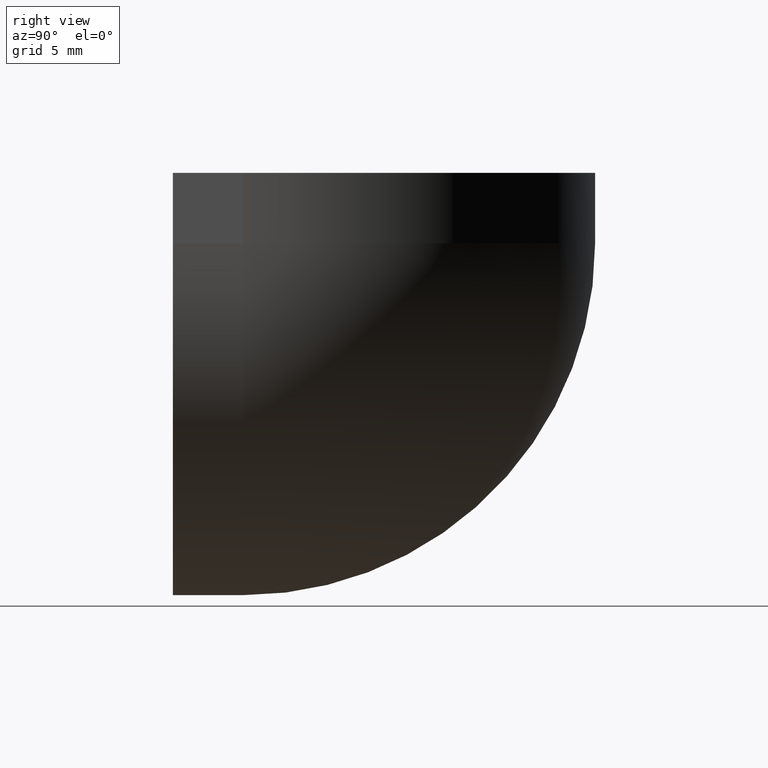
[diagram: clean part render]
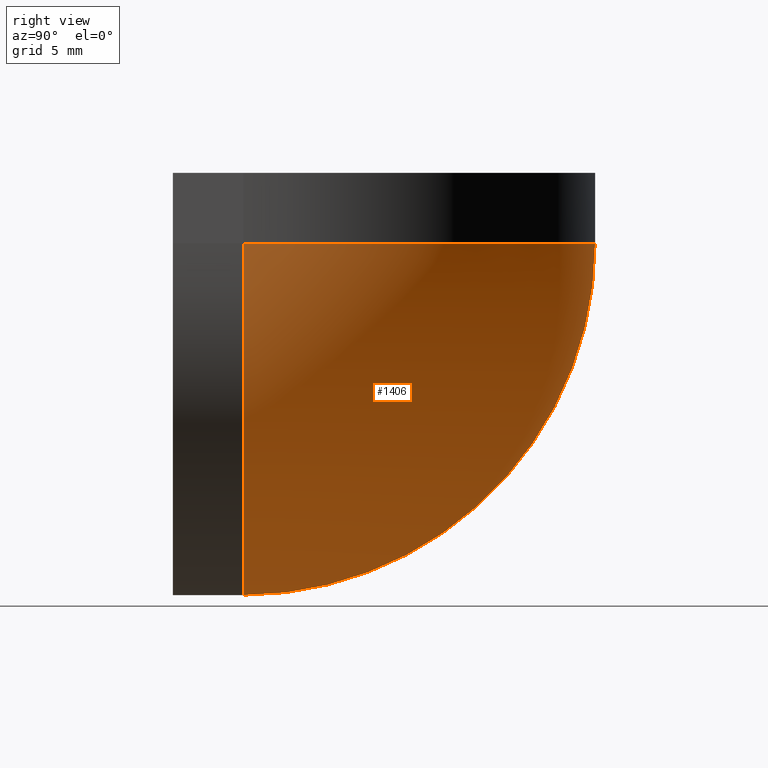
[diagram: same view with one face highlighted and labeled with its STEP entity id]
A machine part, right view. The second image highlights one B-rep face of the part: STEP entity #1406.
In plain terms, the highlighted spherical surface has radius 25 mm.
Its self-contained STEP definition (entity closure, byte-faithful):
#64=SPHERICAL_SURFACE('',#1559,25.);
#132=CIRCLE('',#1549,25.);
#136=CIRCLE('',#1560,25.);
#137=CIRCLE('',#1561,25.);
#218=FACE_OUTER_BOUND('',#308,.T.);
#308=EDGE_LOOP('',(#1106,#1107,#1108));
#669=VERTEX_POINT('',#5423);
#671=VERTEX_POINT('',#5429);
#680=VERTEX_POINT('',#5487);
#829=EDGE_CURVE('',#671,#669,#132,.T.);
#848=EDGE_CURVE('',#680,#671,#136,.T.);
#849=EDGE_CURVE('',#669,#680,#137,.T.);
#1106=ORIENTED_EDGE('',*,*,#848,.F.);
#1107=ORIENTED_EDGE('',*,*,#849,.F.);
#1108=ORIENTED_EDGE('',*,*,#829,.F.);
#1406=ADVANCED_FACE('',(#218),#64,.T.);
#1549=AXIS2_PLACEMENT_3D('',#5431,#1795,#1796);
#1559=AXIS2_PLACEMENT_3D('',#5486,#1828,#1829);
#1560=AXIS2_PLACEMENT_3D('',#5488,#1830,#1831);
#1561=AXIS2_PLACEMENT_3D('',#5489,#1832,#1833);
#1795=DIRECTION('center_axis',(0.,0.,1.));
#1796=DIRECTION('ref_axis',(1.,0.,0.));
#1828=DIRECTION('center_axis',(1.,8.5265128291212E-16,-3.5527136788005E-15));
#1829=DIRECTION('ref_axis',(-3.5171865420125E-15,0.,-1.));
#1830=DIRECTION('center_axis',(8.67361737988403E-16,-1.,0.));
#1831=DIRECTION('ref_axis',(1.,8.67361737988403E-16,0.));
#1832=DIRECTION('center_axis',(-1.,-8.67361737988403E-16,3.49148133884313E-15));
#1833=DIRECTION('ref_axis',(3.49148133884313E-15,8.67361737988404E-16,1.));
#5423=CARTESIAN_POINT('',(4.99999999999999,30.,-5.));
#5429=CARTESIAN_POINT('',(30.,5.,-5.));
#5431=CARTESIAN_POINT('Origin',(5.,5.,-5.));
#5486=CARTESIAN_POINT('Origin',(5.00000000000002,5.,-4.99999999999998));
#5487=CARTESIAN_POINT('',(4.99999999999993,4.99999999999998,-30.));
#5488=CARTESIAN_POINT('Origin',(5.00000000000002,4.99999999999998,-5.));
#5489=CARTESIAN_POINT('Origin',(5.00000000000002,5.,-4.99999999999998));